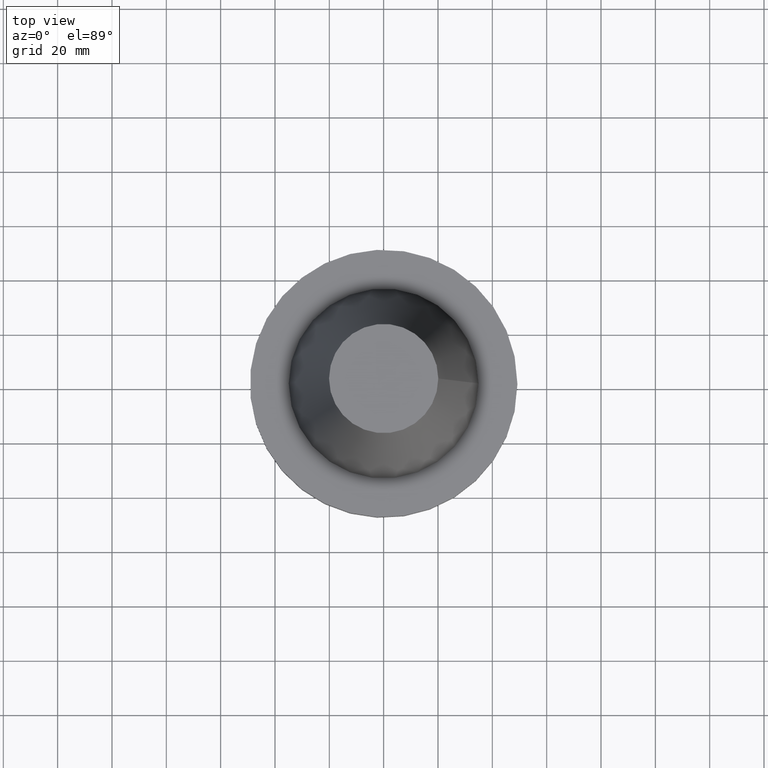
[diagram: clean part render]
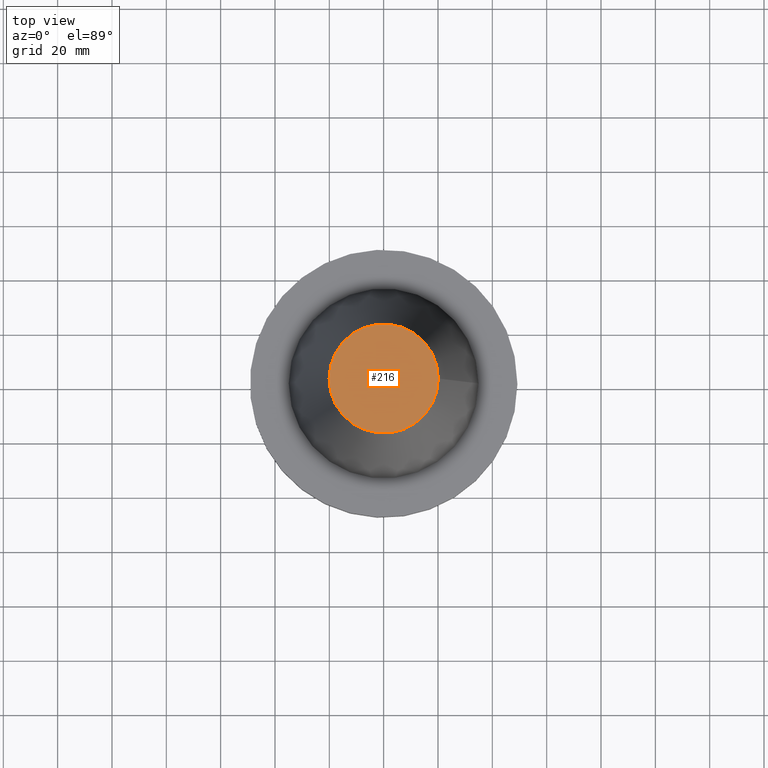
[diagram: same view with one face highlighted and labeled with its STEP entity id]
A machine part, top view. The second image highlights one B-rep face of the part: STEP entity #216.
In plain terms, the highlighted planar face has unit normal (0, 0, -1).
Its self-contained STEP definition (entity closure, byte-faithful):
#37 = CARTESIAN_POINT ( 'NONE',  ( 20.10819343178871321, 0.000000000000000000, 101.5999999999999801 ) ) ;
#53 = PLANE ( 'NONE',  #245 ) ;
#101 = DIRECTION ( 'NONE',  ( -0.000000000000000000, -0.000000000000000000, 1.000000000000000000 ) ) ;
#133 = CARTESIAN_POINT ( 'NONE',  ( 0.000000000000000000, 0.000000000000000000, 101.5999999999999801 ) ) ;
#146 = DIRECTION ( 'NONE',  ( -1.000000000000000000, 0.000000000000000000, -0.000000000000000000 ) ) ;
#148 = FACE_OUTER_BOUND ( 'NONE', #188, .T. ) ;
#182 = DIRECTION ( 'NONE',  ( 1.000000000000000000, 0.000000000000000000, 0.000000000000000000 ) ) ;
#188 = EDGE_LOOP ( 'NONE', ( #254 ) ) ;
#204 = CARTESIAN_POINT ( 'NONE',  ( 0.000000000000000000, 20.10819343178871321, 101.5999999999999943 ) ) ;
#216 = ADVANCED_FACE ( 'NONE', ( #148 ), #53, .F. ) ;
#232 = AXIS2_PLACEMENT_3D ( 'NONE', #133, #101, #182 ) ;
#245 = AXIS2_PLACEMENT_3D ( 'NONE', #204, #300, #146 ) ;
#254 = ORIENTED_EDGE ( 'NONE', *, *, #388, .T. ) ;
#300 = DIRECTION ( 'NONE',  ( 0.000000000000000000, 0.000000000000000000, -1.000000000000000000 ) ) ;
#341 = VERTEX_POINT ( 'NONE', #37 ) ;
#366 = CIRCLE ( 'NONE', #232, 20.10819343178871321 ) ;
#388 = EDGE_CURVE ( 'NONE', #341, #341, #366, .T. ) ;